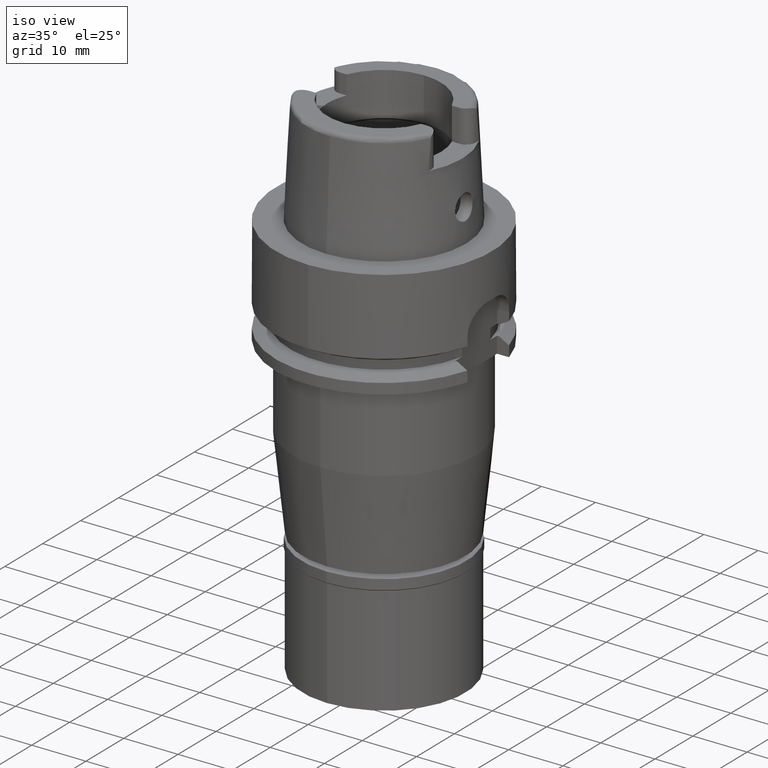
[diagram: clean part render]
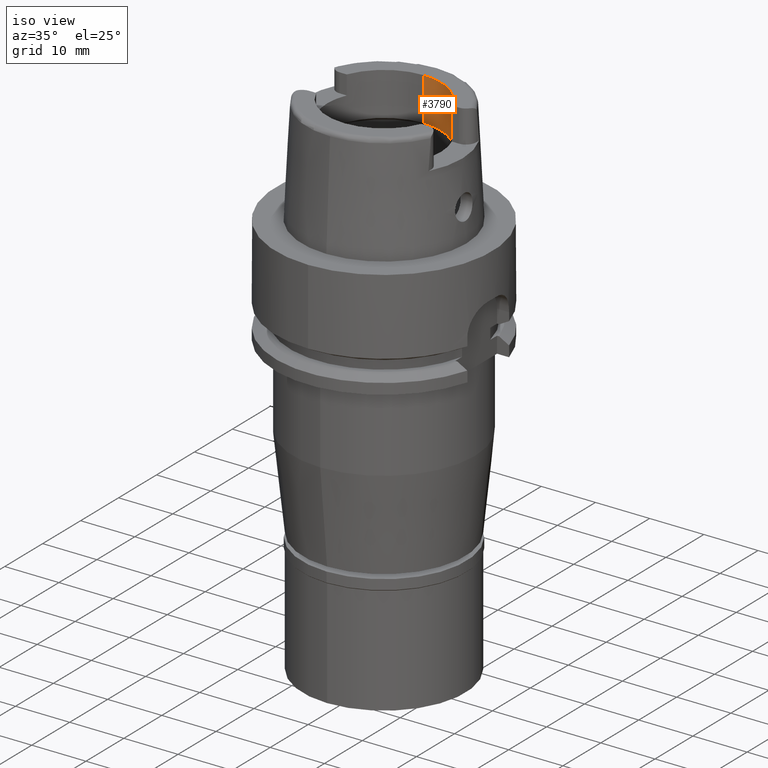
[diagram: same view with one face highlighted and labeled with its STEP entity id]
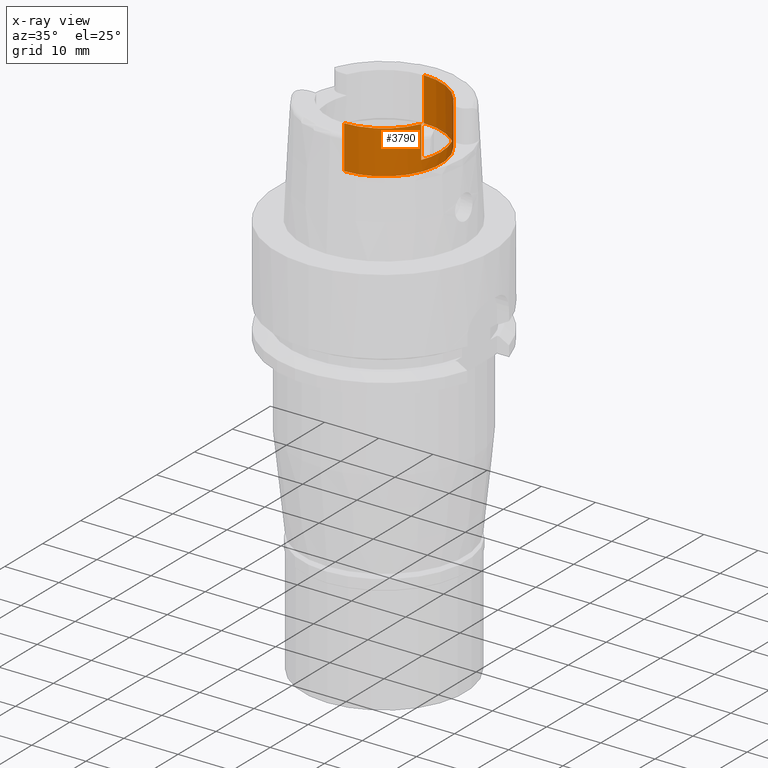
[diagram: x-ray of the same camera — body ghosted, the highlighted face saturated]
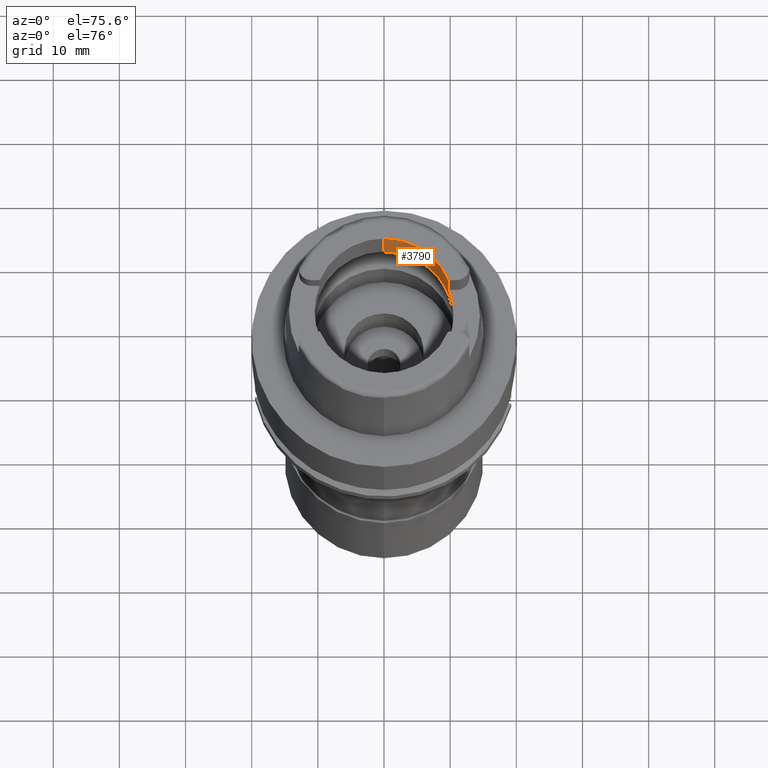
[diagram: same view with one face highlighted and labeled with its STEP entity id]
A machine part, iso view. The second image highlights one B-rep face of the part: STEP entity #3790.
The next image is the same camera in x-ray: the body ghosted, the highlighted face saturated — about 0% of this face is hidden behind the body in this view.
A second angle (auxiliary view) of the same face is appended — the face is thin or edge-on in the first view.
In plain terms, the highlighted cylindrical surface (partial cylindrical patch) has radius 10.5 mm, axis along (0, 0, 1).
Its self-contained STEP definition (entity closure, byte-faithful):
#30 = DIRECTION ( 'NONE',  ( 0.0000000000000000000, -4.528210123235999978E-14, 1.000000000000000000 ) ) ;
#80 = EDGE_CURVE ( 'NONE', #4672, #4982, #1120, .T. ) ;
#154 = CARTESIAN_POINT ( 'NONE',  ( 9.697905701747998819, -4.025000000000000355, 14.00000000000000000 ) ) ;
#402 = EDGE_CURVE ( 'NONE', #4672, #2490, #1290, .T. ) ;
#528 = VERTEX_POINT ( 'NONE', #960 ) ;
#592 = AXIS2_PLACEMENT_3D ( 'NONE', #1637, #3783, #3381 ) ;
#593 = ORIENTED_EDGE ( 'NONE', *, *, #2493, .F. ) ;
#815 = ORIENTED_EDGE ( 'NONE', *, *, #2602, .T. ) ;
#960 = CARTESIAN_POINT ( 'NONE',  ( 0.0000000000000000000, 10.50000000000000000, 11.99735026918999914 ) ) ;
#967 = EDGE_CURVE ( 'NONE', #1871, #1156, #5112, .T. ) ;
#1040 = DIRECTION ( 'NONE',  ( 0.0000000000000000000, 0.0000000000000000000, 1.000000000000000000 ) ) ;
#1115 = AXIS2_PLACEMENT_3D ( 'NONE', #5111, #4641, #2180 ) ;
#1120 = LINE ( 'NONE', #5253, #3029 ) ;
#1156 = VERTEX_POINT ( 'NONE', #3960 ) ;
#1224 = CARTESIAN_POINT ( 'NONE',  ( 0.0000000000000000000, -10.50000000000000000, 11.99735026918999914 ) ) ;
#1249 = CARTESIAN_POINT ( 'NONE',  ( 0.0000000000000000000, -10.50000000000000000, 20.00000000000000000 ) ) ;
#1290 = CIRCLE ( 'NONE', #592, 10.49999999999999822 ) ;
#1386 = EDGE_LOOP ( 'NONE', ( #593, #5189, #2426, #2790, #3475, #815, #3318, #1438 ) ) ;
#1438 = ORIENTED_EDGE ( 'NONE', *, *, #402, .T. ) ;
#1445 = CARTESIAN_POINT ( 'NONE',  ( 0.0000000000000000000, 0.0000000000000000000, -72.71500000000000341 ) ) ;
#1495 = DIRECTION ( 'NONE',  ( 0.0000000000000000000, 1.000000000000000000, 0.0000000000000000000 ) ) ;
#1595 = VERTEX_POINT ( 'NONE', #1224 ) ;
#1637 = CARTESIAN_POINT ( 'NONE',  ( 0.0000000000000000000, 0.0000000000000000000, 14.00000000000000000 ) ) ;
#1674 = VERTEX_POINT ( 'NONE', #1249 ) ;
#1692 = LINE ( 'NONE', #3836, #1986 ) ;
#1871 = VERTEX_POINT ( 'NONE', #2566 ) ;
#1986 = VECTOR ( 'NONE', #30, 1000.000000000000000 ) ;
#2062 = CARTESIAN_POINT ( 'NONE',  ( 9.697905701747998819, 4.025000000000000355, 20.00000000000000000 ) ) ;
#2145 = DIRECTION ( 'NONE',  ( 0.0000000000000000000, -1.000000000000000000, 0.0000000000000000000 ) ) ;
#2170 = CIRCLE ( 'NONE', #3649, 10.50000000000000000 ) ;
#2180 = DIRECTION ( 'NONE',  ( 0.9236100668331782559, 0.3833333333332911153, 0.0000000000000000000 ) ) ;
#2240 = CARTESIAN_POINT ( 'NONE',  ( 9.697905701747998819, -4.025000000000000355, 20.00000000000000000 ) ) ;
#2342 = VECTOR ( 'NONE', #4825, 1000.000000000000000 ) ;
#2426 = ORIENTED_EDGE ( 'NONE', *, *, #3001, .F. ) ;
#2441 = CARTESIAN_POINT ( 'NONE',  ( 9.697905701747998819, 4.025000000000000355, 14.00000000000000000 ) ) ;
#2490 = VERTEX_POINT ( 'NONE', #2441 ) ;
#2493 = EDGE_CURVE ( 'NONE', #1871, #2490, #3692, .T. ) ;
#2566 = CARTESIAN_POINT ( 'NONE',  ( 9.697905701747998819, 4.025000000000000355, 20.00000000000000000 ) ) ;
#2602 = EDGE_CURVE ( 'NONE', #1674, #4982, #2170, .T. ) ;
#2790 = ORIENTED_EDGE ( 'NONE', *, *, #5251, .T. ) ;
#2832 = DIRECTION ( 'NONE',  ( 0.0000000000000000000, 0.0000000000000000000, 1.000000000000000000 ) ) ;
#2940 = DIRECTION ( 'NONE',  ( 0.0000000000000000000, 0.0000000000000000000, 1.000000000000000000 ) ) ;
#2953 = DIRECTION ( 'NONE',  ( 0.0000000000000000000, 1.000000000000000000, 0.0000000000000000000 ) ) ;
#3001 = EDGE_CURVE ( 'NONE', #528, #1156, #4389, .T. ) ;
#3029 = VECTOR ( 'NONE', #2832, 1000.000000000000000 ) ;
#3141 = CYLINDRICAL_SURFACE ( 'NONE', #5125, 10.50000000000000000 ) ;
#3317 = CARTESIAN_POINT ( 'NONE',  ( 0.0000000000000000000, 0.0000000000000000000, 20.00000000000000000 ) ) ;
#3318 = ORIENTED_EDGE ( 'NONE', *, *, #80, .F. ) ;
#3358 = CIRCLE ( 'NONE', #5094, 10.50000000000000000 ) ;
#3381 = DIRECTION ( 'NONE',  ( 0.9236100668331782559, -0.3833333333332911153, 0.0000000000000000000 ) ) ;
#3402 = DIRECTION ( 'NONE',  ( 0.0000000000000000000, 0.0000000000000000000, -1.000000000000000000 ) ) ;
#3475 = ORIENTED_EDGE ( 'NONE', *, *, #3924, .T. ) ;
#3649 = AXIS2_PLACEMENT_3D ( 'NONE', #3317, #2940, #2145 ) ;
#3692 = LINE ( 'NONE', #2062, #4599 ) ;
#3783 = DIRECTION ( 'NONE',  ( 0.0000000000000000000, 0.0000000000000000000, 1.000000000000000000 ) ) ;
#3790 = ADVANCED_FACE ( 'NONE', ( #4348 ), #3141, .F. ) ;
#3836 = CARTESIAN_POINT ( 'NONE',  ( 0.0000000000000000000, -10.50000000000000000, 11.99735026918999914 ) ) ;
#3924 = EDGE_CURVE ( 'NONE', #1595, #1674, #1692, .T. ) ;
#3960 = CARTESIAN_POINT ( 'NONE',  ( 0.0000000000000000000, 10.50000000000000000, 20.00000000000000000 ) ) ;
#3992 = CARTESIAN_POINT ( 'NONE',  ( 0.0000000000000000000, 10.50000000000000000, 11.99735026918999914 ) ) ;
#4140 = DIRECTION ( 'NONE',  ( 0.0000000000000000000, 0.0000000000000000000, -1.000000000000000000 ) ) ;
#4348 = FACE_OUTER_BOUND ( 'NONE', #1386, .T. ) ;
#4389 = LINE ( 'NONE', #3992, #2342 ) ;
#4485 = CARTESIAN_POINT ( 'NONE',  ( 0.0000000000000000000, 0.0000000000000000000, 11.99735026918999914 ) ) ;
#4599 = VECTOR ( 'NONE', #3402, 1000.000000000000000 ) ;
#4641 = DIRECTION ( 'NONE',  ( 0.0000000000000000000, 0.0000000000000000000, 1.000000000000000000 ) ) ;
#4672 = VERTEX_POINT ( 'NONE', #154 ) ;
#4825 = DIRECTION ( 'NONE',  ( 0.0000000000000000000, 4.528210123235999978E-14, 1.000000000000000000 ) ) ;
#4982 = VERTEX_POINT ( 'NONE', #2240 ) ;
#5094 = AXIS2_PLACEMENT_3D ( 'NONE', #4485, #4140, #2953 ) ;
#5111 = CARTESIAN_POINT ( 'NONE',  ( 0.0000000000000000000, 0.0000000000000000000, 20.00000000000000000 ) ) ;
#5112 = CIRCLE ( 'NONE', #1115, 10.49999999999999822 ) ;
#5125 = AXIS2_PLACEMENT_3D ( 'NONE', #1445, #1040, #1495 ) ;
#5189 = ORIENTED_EDGE ( 'NONE', *, *, #967, .T. ) ;
#5251 = EDGE_CURVE ( 'NONE', #528, #1595, #3358, .T. ) ;
#5253 = CARTESIAN_POINT ( 'NONE',  ( 9.697905701747998819, -4.025000000000000355, 14.00000000000000000 ) ) ;